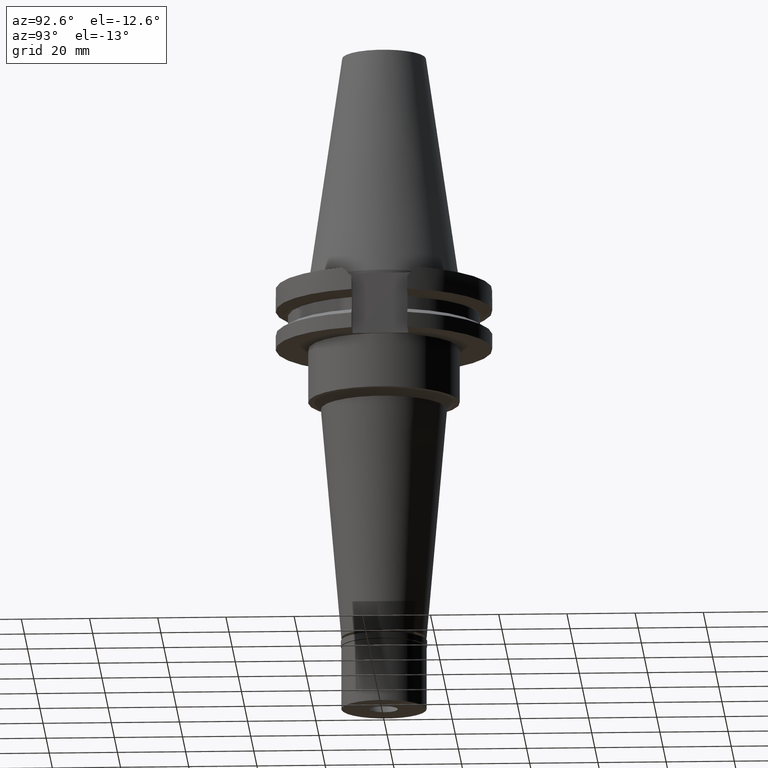
[diagram: clean part render]
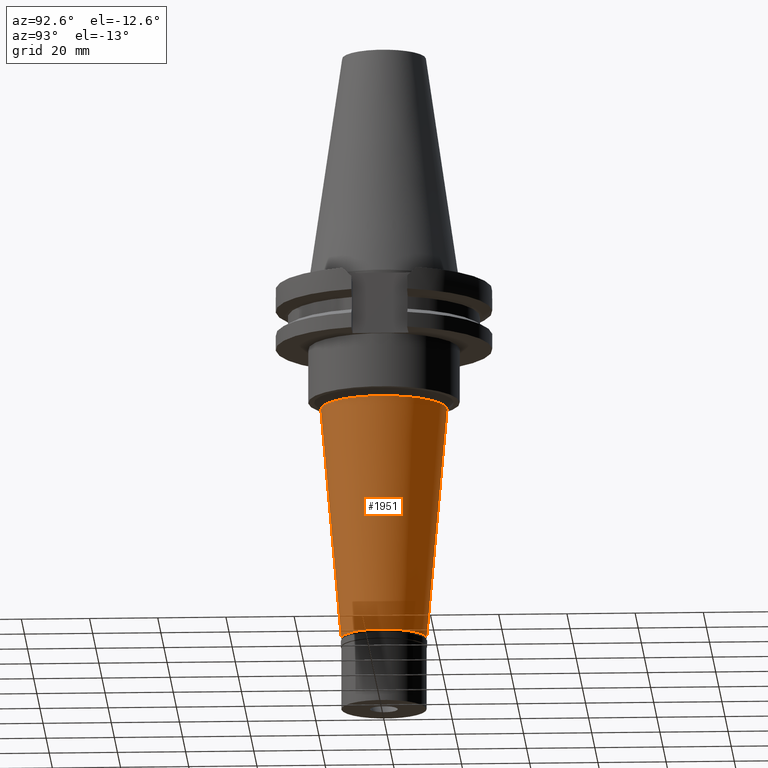
[diagram: same view with one face highlighted and labeled with its STEP entity id]
A machine part, auxiliary view. The second image highlights one B-rep face of the part: STEP entity #1951.
In plain terms, the highlighted conical surface has half-angle 5 deg.
Its self-contained STEP definition (entity closure, byte-faithful):
#83 = CARTESIAN_POINT ( 'NONE',  ( 0.0000000000000000000, 0.0000000000000000000, -71.34999999999999432 ) ) ;
#115 = DIRECTION ( 'NONE',  ( 0.0000000000000000000, 0.08715574274764407992, -0.9961946980917467664 ) ) ;
#332 = ORIENTED_EDGE ( 'NONE', *, *, #2120, .F. ) ;
#340 = CARTESIAN_POINT ( 'NONE',  ( 0.0000000000000000000, 18.51047118422999915, -37.00000000000000000 ) ) ;
#387 = ORIENTED_EDGE ( 'NONE', *, *, #1329, .T. ) ;
#388 = CARTESIAN_POINT ( 'NONE',  ( 0.0000000000000000000, -18.51047118422999915, -37.00000000000000000 ) ) ;
#406 = CARTESIAN_POINT ( 'NONE',  ( 0.0000000000000000000, -12.50000000000000000, -105.7000000000000028 ) ) ;
#566 = AXIS2_PLACEMENT_3D ( 'NONE', #83, #1927, #614 ) ;
#614 = DIRECTION ( 'NONE',  ( 0.0000000000000000000, 1.000000000000000000, 0.0000000000000000000 ) ) ;
#706 = CARTESIAN_POINT ( 'NONE',  ( 0.0000000000000000000, 0.0000000000000000000, -37.00000000000000000 ) ) ;
#752 = CARTESIAN_POINT ( 'NONE',  ( 0.0000000000000000000, 18.51047118422999915, -37.00000000000000000 ) ) ;
#963 = VERTEX_POINT ( 'NONE', #752 ) ;
#1106 = CIRCLE ( 'NONE', #3170, 12.50000000000000000 ) ;
#1109 = CIRCLE ( 'NONE', #2465, 18.51047118424000359 ) ;
#1235 = DIRECTION ( 'NONE',  ( 0.0000000000000000000, 0.0000000000000000000, 1.000000000000000000 ) ) ;
#1242 = EDGE_LOOP ( 'NONE', ( #332, #387, #2807, #1952 ) ) ;
#1329 = EDGE_CURVE ( 'NONE', #2793, #1413, #2725, .T. ) ;
#1381 = DIRECTION ( 'NONE',  ( 0.0000000000000000000, -0.08715574274764407992, -0.9961946980917467664 ) ) ;
#1413 = VERTEX_POINT ( 'NONE', #406 ) ;
#1528 = DIRECTION ( 'NONE',  ( 0.0000000000000000000, -1.000000000000000000, 0.0000000000000000000 ) ) ;
#1612 = EDGE_CURVE ( 'NONE', #1413, #1962, #1106, .T. ) ;
#1657 = CONICAL_SURFACE ( 'NONE', #566, 15.50523559212000002, 0.08726646259969973729 ) ;
#1751 = CARTESIAN_POINT ( 'NONE',  ( 0.0000000000000000000, 0.0000000000000000000, -105.7000000000000028 ) ) ;
#1898 = LINE ( 'NONE', #340, #2145 ) ;
#1927 = DIRECTION ( 'NONE',  ( 0.0000000000000000000, 0.0000000000000000000, 1.000000000000000000 ) ) ;
#1951 = ADVANCED_FACE ( 'NONE', ( #2946 ), #1657, .T. ) ;
#1952 = ORIENTED_EDGE ( 'NONE', *, *, #2035, .F. ) ;
#1962 = VERTEX_POINT ( 'NONE', #2177 ) ;
#2035 = EDGE_CURVE ( 'NONE', #963, #1962, #1898, .T. ) ;
#2061 = DIRECTION ( 'NONE',  ( 0.0000000000000000000, 0.0000000000000000000, 1.000000000000000000 ) ) ;
#2120 = EDGE_CURVE ( 'NONE', #2793, #963, #1109, .T. ) ;
#2145 = VECTOR ( 'NONE', #1381, 1000.000000000000114 ) ;
#2177 = CARTESIAN_POINT ( 'NONE',  ( 0.0000000000000000000, 12.50000000000000000, -105.7000000000000028 ) ) ;
#2465 = AXIS2_PLACEMENT_3D ( 'NONE', #706, #1235, #1528 ) ;
#2628 = VECTOR ( 'NONE', #115, 1000.000000000000114 ) ;
#2725 = LINE ( 'NONE', #388, #2628 ) ;
#2793 = VERTEX_POINT ( 'NONE', #2838 ) ;
#2807 = ORIENTED_EDGE ( 'NONE', *, *, #1612, .T. ) ;
#2838 = CARTESIAN_POINT ( 'NONE',  ( 0.0000000000000000000, -18.51047118422999915, -37.00000000000000000 ) ) ;
#2946 = FACE_OUTER_BOUND ( 'NONE', #1242, .T. ) ;
#3095 = DIRECTION ( 'NONE',  ( 0.0000000000000000000, -1.000000000000000000, 0.0000000000000000000 ) ) ;
#3170 = AXIS2_PLACEMENT_3D ( 'NONE', #1751, #2061, #3095 ) ;